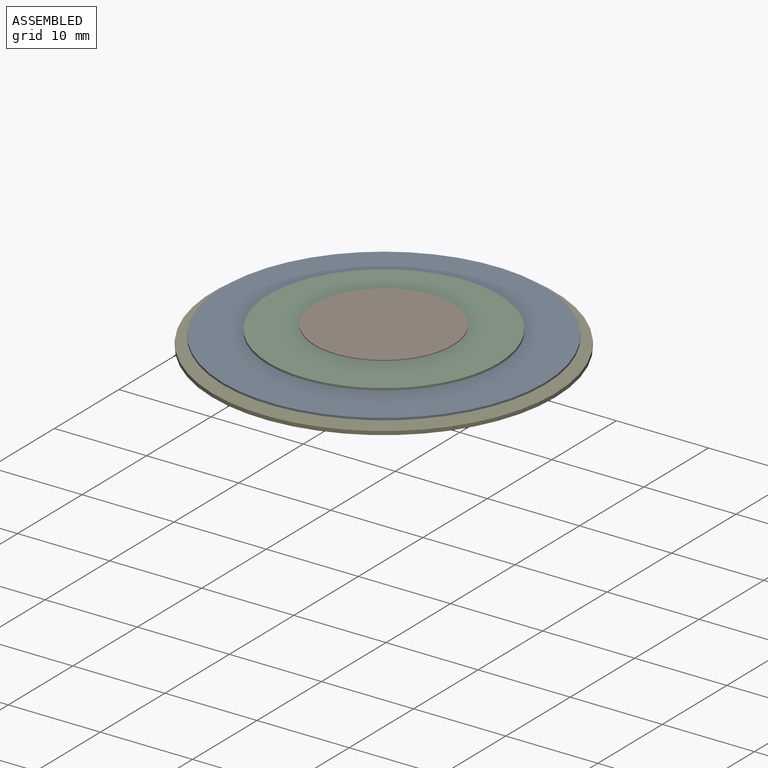
[diagram: assembled view]
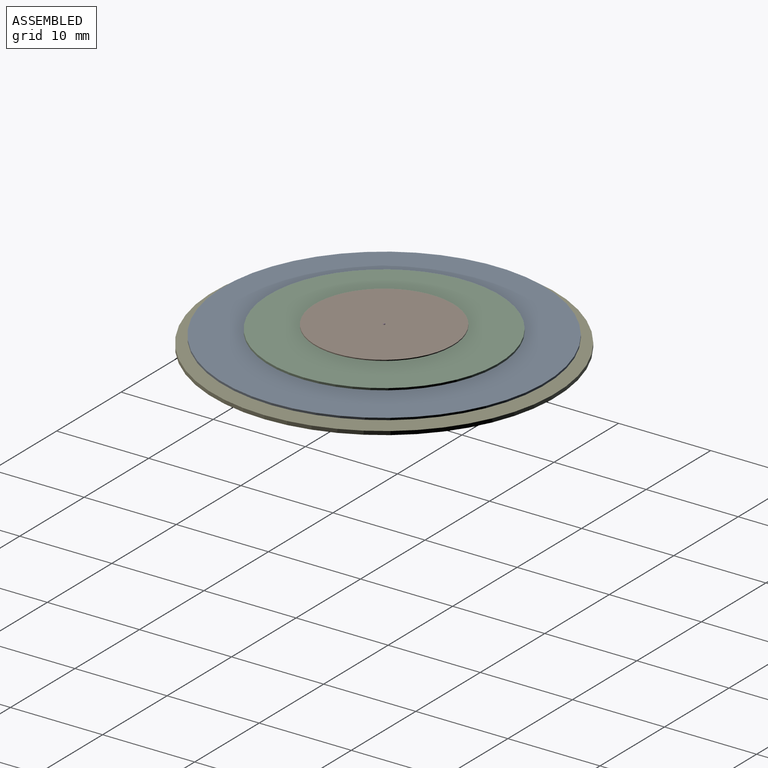
[diagram: assembled view, second angle]
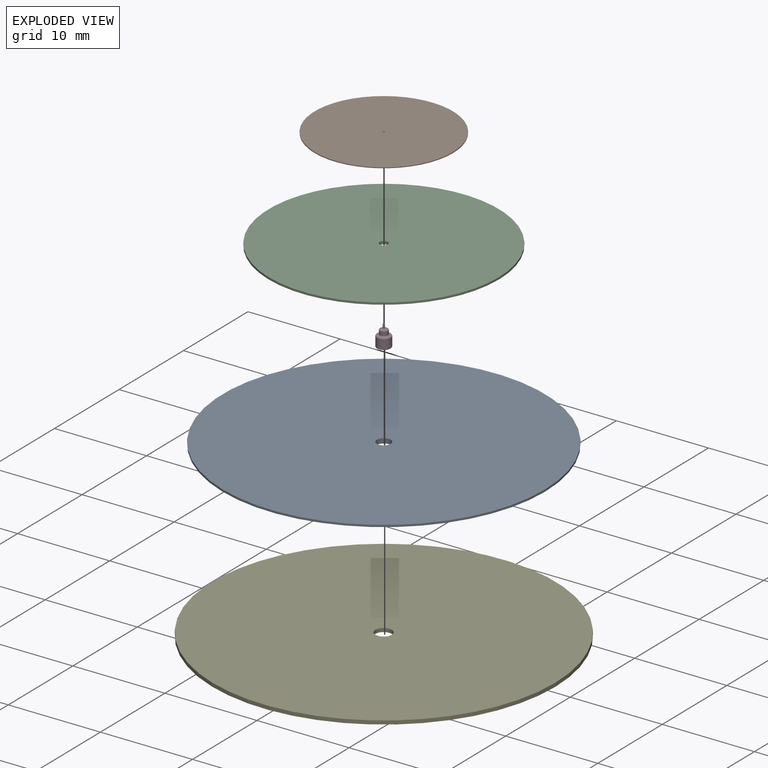
[diagram: exploded view]
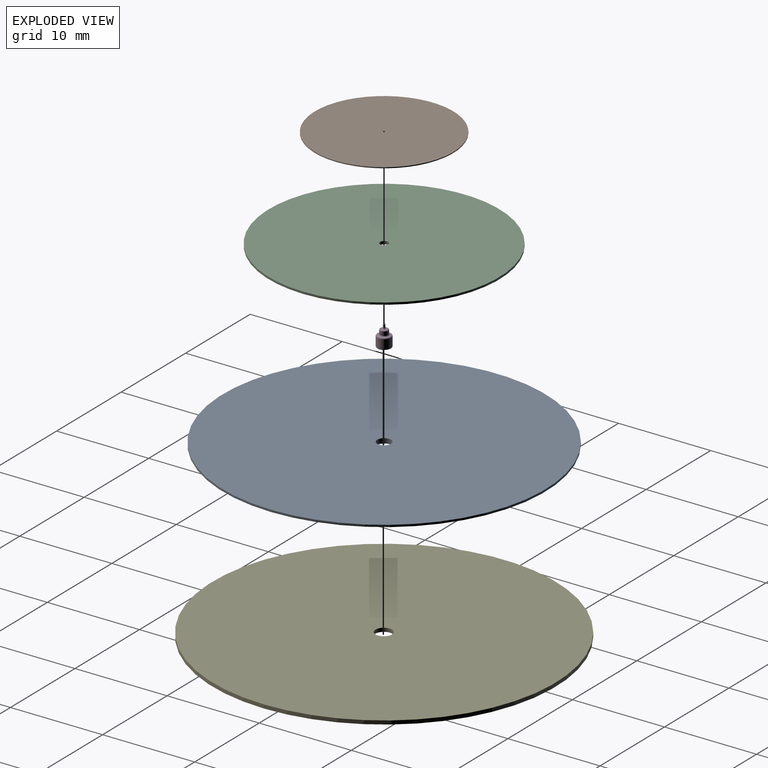
[diagram: exploded view, second angle]
ASSEMBLY  parts=5 mates=4
PART A: 6 faces, bbox 35x35x0.5 mm
  f0: cylinder r=17.5mm len=35mm, axis (0,0,-1), area 24.2mm2, adj f1,f2
  f1: plane 35x35mm, normal (0,0,1), area 960.3mm2, adj f0,f5
  f2: plane 35x35mm, normal (0,0,-1), area 957.2mm2, adj f0,f3
  f3: cylinder r=1.25mm len=2.5mm, axis (0,0,1), area 2.4mm2, adj f2,f4
  f4: plane 2.5x2.5mm, normal (0,0,-1), area 3.1mm2, adj f3,f5
  f5: cylinder r=0.75mm len=1.51mm, axis (0,0,-1), area 2.5mm2, adj f1,f4
PART B: 8 faces, bbox 15x15x0.6 mm
  f0: cylinder r=7.5mm len=15mm, axis (0,0,-1), area 4.7mm2, adj f1,f2
  f1: plane 15x15mm, normal (0,0,1), area 176.7mm2, adj f0,f5
  f2: plane 15x15mm, normal (0,0,-1), area 176.4mm2, adj f0,f3
  f3: cylinder r=0.3mm len=0.6mm, axis (0,0,1), area 0.2mm2, adj f2,f4
  f4: plane 0.6x0.6mm, normal (0,0,-1), area 0.2mm2, adj f3,f6
  f5: cylinder r=0.11mm len=0.6mm, axis (0,0,-1), area 0.4mm2, adj f1,f7
  f6: cylinder r=0.17mm len=0.4mm, axis (0,0,1), area 0.4mm2, adj f4,f7
  f7: plane 0.35x0.35mm, normal (0,0,-1), area 0.1mm2, adj f5,f6
PART C: 6 faces, bbox 25x25x0.3 mm
  f0: cylinder r=12.5mm len=25mm, axis (0,0,-1), area 17.3mm2, adj f1,f2
  f1: plane 25x25mm, normal (0,0,1), area 490.3mm2, adj f0,f5
  f2: plane 25x25mm, normal (0,0,-1), area 488.5mm2, adj f0,f3
  f3: cylinder r=0.88mm len=1.75mm, axis (0,0,1), area 0.5mm2, adj f2,f4
  f4: plane 1.75x1.75mm, normal (0,0,-1), area 1.8mm2, adj f3,f5
  f5: cylinder r=0.45mm len=0.89mm, axis (0,0,-1), area 0.9mm2, adj f1,f4
PART D: 13 faces, bbox 1.6x1.6x2.3 mm
  f0: cylinder r=0.75mm len=1.51mm, axis (0,0,-1), area 4.6mm2, adj f11,f12
  f1: plane 1.31x1.31mm, normal (0,0,1), area 0.4mm2, adj f9,f12
  f2: plane 1.31x1.31mm, normal (0,0,-1), area 1.3mm2, adj f11
  f3: cylinder r=0.45mm len=0.89mm, axis (0,0,-1), area 1.1mm2, adj f9,f10
  f4: plane 0.69x0.69mm, normal (0,0,1), area 0.2mm2, adj f7,f10
  f5: cylinder r=0.11mm len=0.34mm, axis (0,0,-1), area 0.2mm2, adj f7,f8
  f6: plane 0.02x0.02mm, normal (0,0,1), area 0mm2, adj f8
  f7: torus R=0.21mm, axis (0,0,1), area 0.1mm2, adj f4,f5
  f8: torus R=0.01mm, axis (0,0,1), area 0.1mm2, adj f5,f6
  f9: torus R=0.55mm, axis (0,0,1), area 0.5mm2, adj f1,f3
  f10: torus R=0.35mm, axis (0,0,1), area 0.4mm2, adj f3,f4
  f11: torus R=0.65mm, axis (0,0,1), area 0.7mm2, adj f0,f2
  f12: torus R=0.65mm, axis (0,0,1), area 0.7mm2, adj f0,f1
PART E: 4 faces, bbox 37.2x37.2x0.4 mm
  f0: cylinder r=18.6mm len=37.2mm, axis (0,0,-1), area 46.7mm2, adj f1,f2
  f1: plane 37.2x37.2mm, normal (0,0,1), area 1084.3mm2, adj f0,f3
  f2: plane 37.2x37.2mm, normal (0,0,-1), area 1084.3mm2, adj f0,f3
  f3: cylinder r=0.9mm len=1.8mm, axis (0,0,1), area 2.3mm2, adj f1,f2
PLACE A t=(-9.95,-0.4,7.47)mm
PLACE B t=(-9.95,-0.4,8.62)mm
PLACE C t=(-9.95,-0.4,8.06)mm
PLACE D t=(-9.95,-0.4,6.51)mm
PLACE E t=(-9.95,-0.43,6.51)mm
MATE fastened D.f0 <-> A.f0  axis (0,0,1) through (-9.95,-0.4,7.69)mm
MATE fastened D.f3 <-> C.f0  axis (0,0,1) through (-9.95,-0.4,8.28)mm
MATE fastened D.f0 <-> E.f0  axis (0,0,-1) through (-9.95,-0.4,6.51)mm
MATE fastened B.f0 <-> D.f5  axis (0,0,1) through (-9.95,-0.4,8.72)mm
